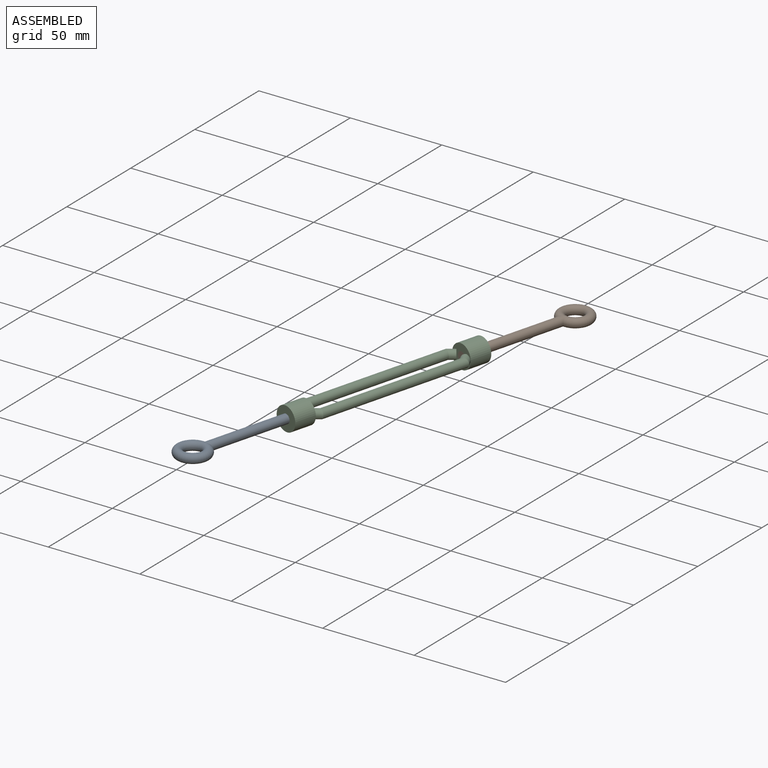
[diagram: assembled view]
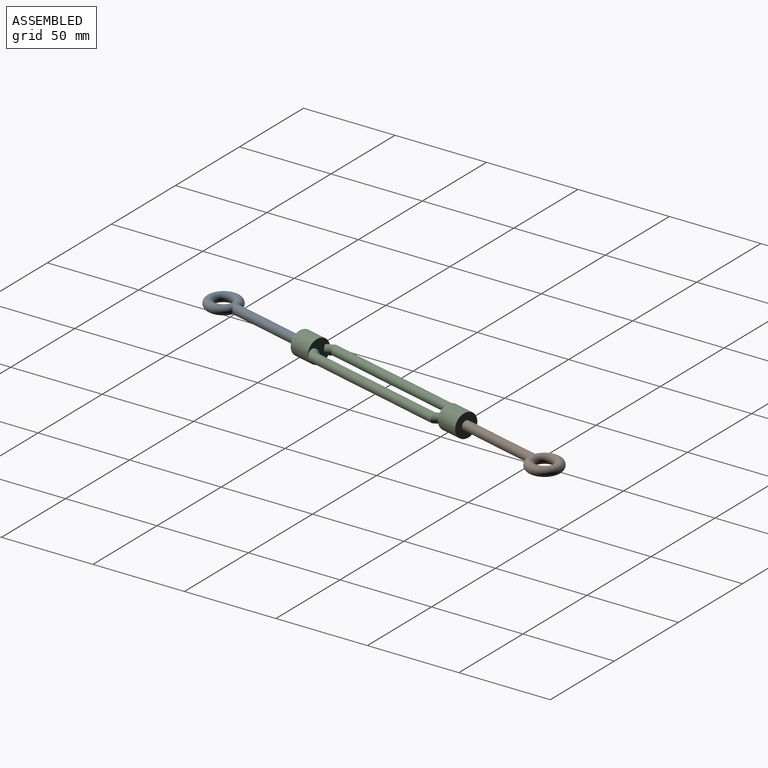
[diagram: assembled view, second angle]
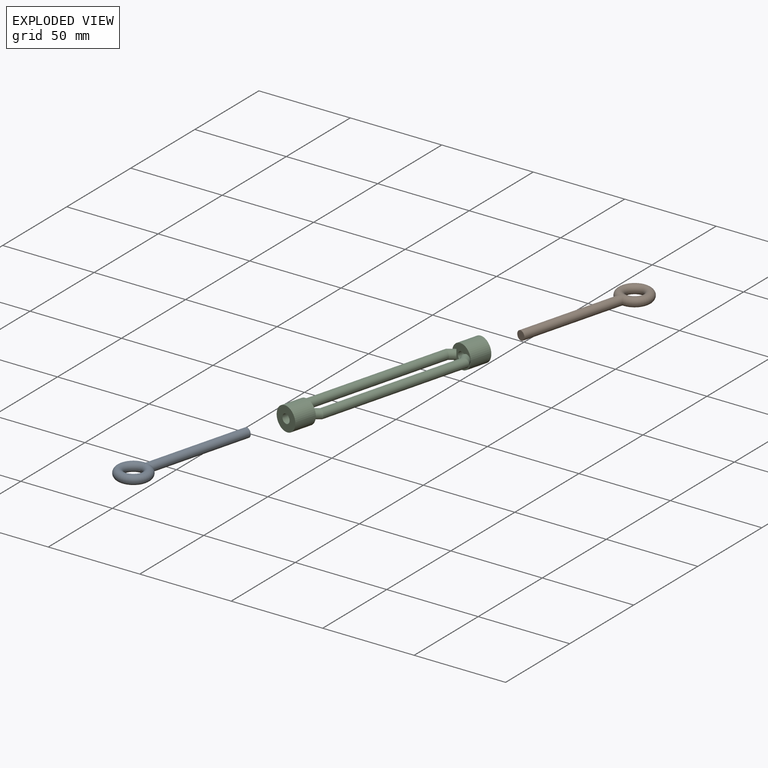
[diagram: exploded view]
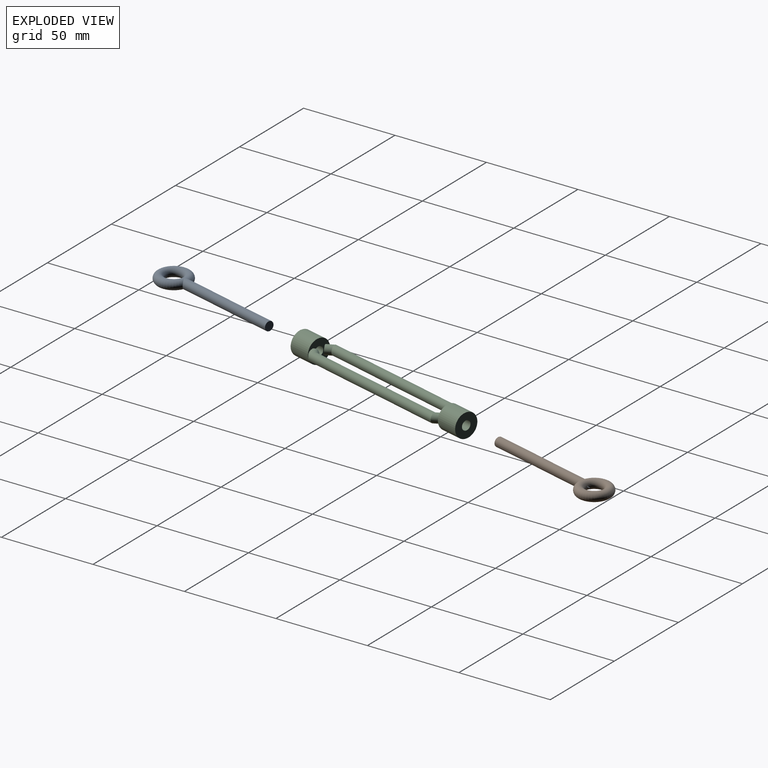
[diagram: exploded view, second angle]
ASSEMBLY  parts=3 mates=2
PART A: 7 faces, bbox 20.6x76.8x5 mm
  f0: cylinder r=2.5mm len=59.5mm, axis (0,-1,0), area 912.4mm2, adj f1,f2
  f1: plane 5x5mm, normal (0,1,0), area 19.6mm2, adj f0
  f2: torus R=7mm, axis (0,0,-1), area 665.2mm2, adj f0,f3,f4,f5,f6
  f3: cylinder r=2.5mm len=0.96mm, axis (0,-1,0), area 0.2mm2, adj f2,f4
  f4: plane 1x0.09mm, normal (0,-1,0), area 0mm2, adj f2,f3
  f5: cylinder r=2.5mm len=0.96mm, axis (0,-1,0), area 0.2mm2, adj f2,f6
  f6: plane 0.96x0.05mm, normal (0,-1,0), area 0mm2, adj f2,f5
PART B: 8 faces, bbox 20.6x76.8x5 mm
  f0: cylinder r=2.5mm len=59.5mm, axis (0,1,0), area 912.4mm2, adj f1,f4
  f1: torus R=7mm, axis (0,0,-1), area 665.4mm2, adj f0,f2,f3
  f2: plane 0.96x0.05mm, normal (0,1,0), area 0mm2, adj f1,f3
  f3: cylinder r=2.5mm len=0.96mm, axis (0,1,0), area 0.2mm2, adj f1,f2
  f4: plane 5x5mm, normal (0,-1,0), area 19.6mm2, adj f0
  f5: torus R=7mm, axis (0,0,-1), area 0.2mm2, adj f6,f7
  f6: plane 1x0.09mm, normal (0,1,0), area 0mm2, adj f5,f7
  f7: cylinder r=2.5mm len=0.96mm, axis (0,1,0), area 0.2mm2, adj f5,f6
PART C: 18 faces, bbox 17x114.6x13 mm
  f0: cylinder r=2.5mm len=12mm, axis (0,-1,0), area 188.5mm2, adj f2,f3
  f1: cylinder r=6.5mm len=13mm, axis (0,-1,0), area 490.1mm2, adj f2,f3
  f2: plane 13x13mm, normal (0,1,0), area 93.3mm2, adj f0,f1,f4,f5,f7,f8
  f3: plane 13x13mm, normal (0,-1,0), area 113.1mm2, adj f0,f1
  f4: plane 5x2.26mm, normal (-0.64,-0.77,0), area 12.1mm2, adj f2,f5
  f5: cylinder r=2.5mm len=7.19mm, axis (-0.64,-0.77,0), area 59.5mm2, adj f2,f4,f6
  f6: cylinder r=2.5mm len=85.27mm, axis (0,-1,0), area 1310.8mm2, adj f5,f15
  f7: plane 5x2.26mm, normal (0.64,-0.77,0), area 12.1mm2, adj f2,f8
  f8: cylinder r=2.5mm len=7.19mm, axis (0.64,-0.77,0), area 59.1mm2, adj f2,f7,f9
  f9: cylinder r=2.5mm len=85.27mm, axis (0,-1,0), area 1310mm2, adj f8,f17
  f10: cylinder r=2.5mm len=12mm, axis (0,1,0), area 188.5mm2, adj f12,f13
  f11: cylinder r=6.5mm len=13mm, axis (0,1,0), area 490.1mm2, adj f12,f13
  f12: plane 13x13mm, normal (0,-1,0), area 93.3mm2, adj f10,f11,f14,f15,f16,f17
  f13: plane 13x13mm, normal (0,1,0), area 113.1mm2, adj f10,f11
  f14: plane 5x2.26mm, normal (-0.64,0.77,0), area 12.1mm2, adj f12,f15
  f15: cylinder r=2.5mm len=7.19mm, axis (-0.64,0.77,0), area 59.5mm2, adj f6,f12,f14
  f16: plane 5x2.26mm, normal (0.64,0.77,0), area 12.1mm2, adj f12,f17
  f17: cylinder r=2.5mm len=7.19mm, axis (0.64,0.77,0), area 59.1mm2, adj f9,f12,f16
PLACE A rot(axis=(0,0,-1),15deg) t=(192.17,-90.14,0)mm
PLACE B rot(axis=(0,0,-1),15deg) t=(185.96,-113.32,0)mm
PLACE C rot(axis=(0,0,-1),15deg) t=(189.07,-101.73,0)mm fixed
MATE cylindrical B.f0 <-> C.f0  axis (-0.26,-0.97,0) through (-151.61,3.47,33)mm
MATE cylindrical A.f0 <-> C.f0  axis (0.26,0.97,0) through (-175.05,-84.02,33)mm
